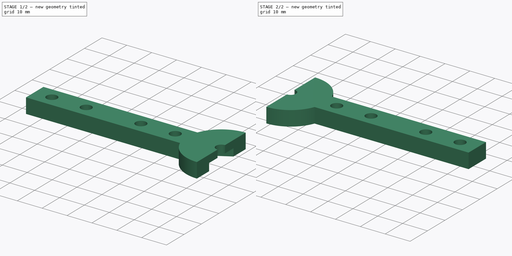
[diagram: build sequence overview — one tinted view per stage of 2, left to right]
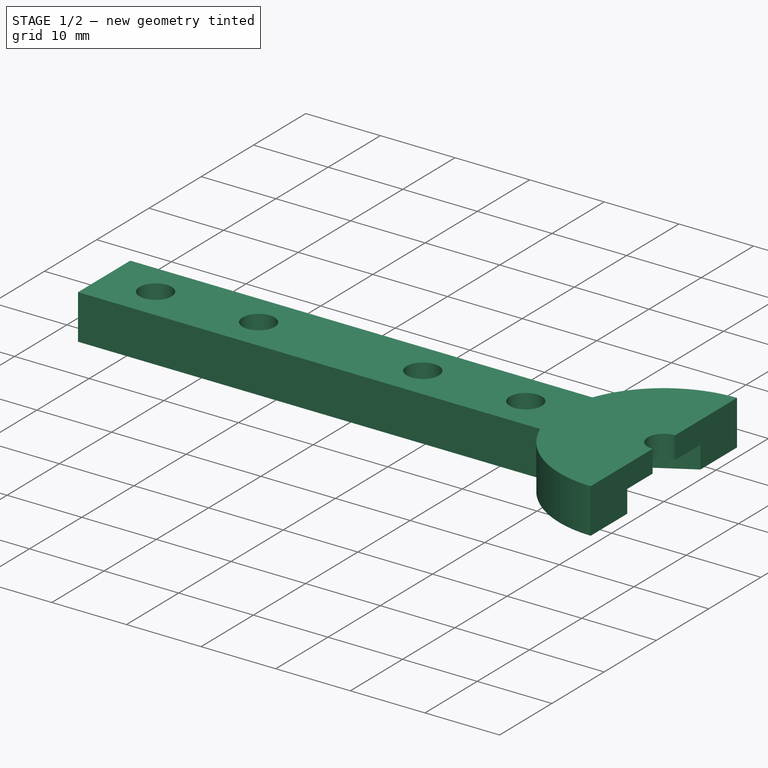
[diagram: stage 1 of 2 — iso view after this stage's code; geometry added in this stage tinted green]
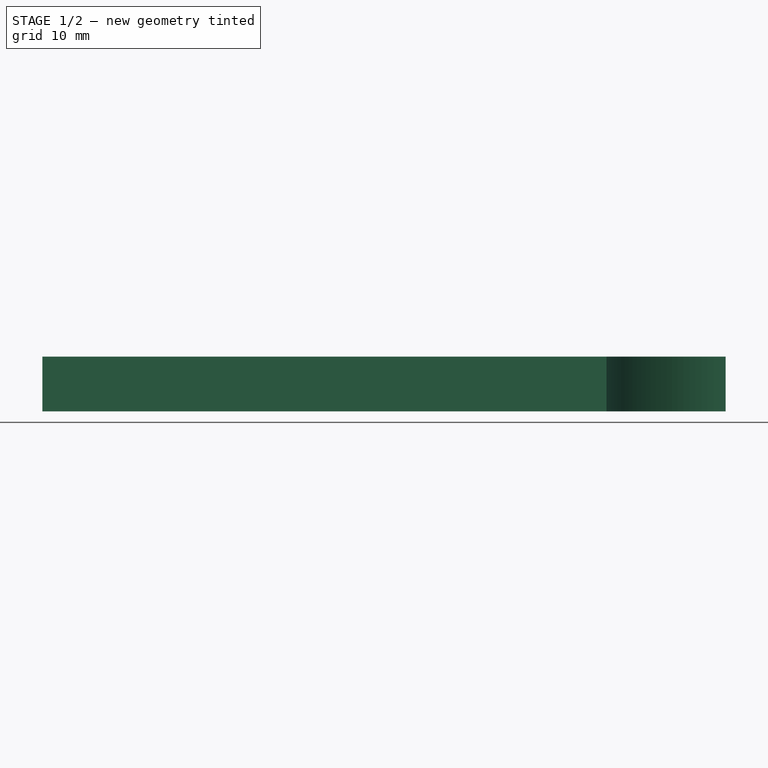
[diagram: stage 1 of 2 — front view after this stage's code; geometry added in this stage tinted green]
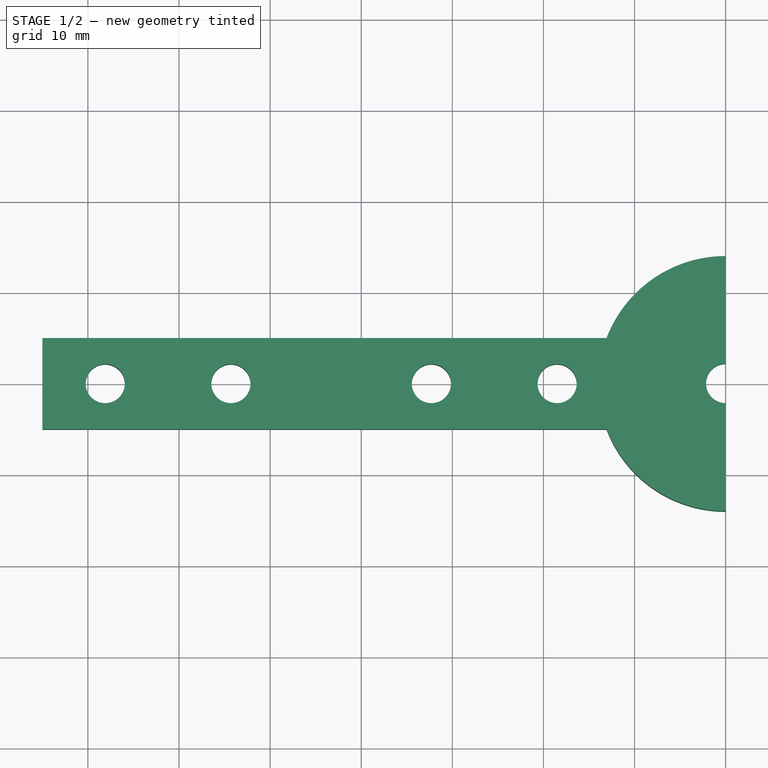
[diagram: stage 1 of 2 — top view after this stage's code; geometry added in this stage tinted green]
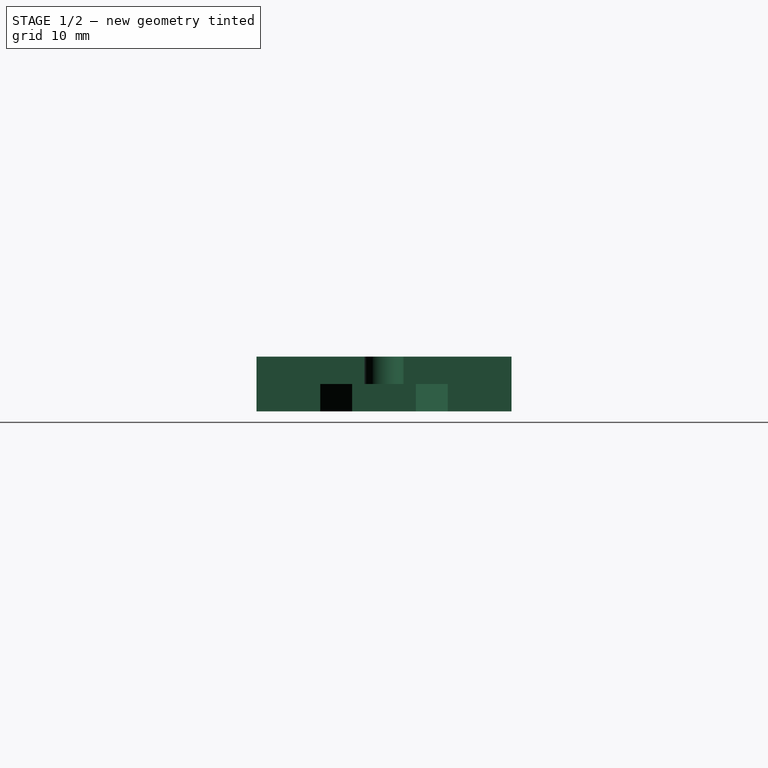
[diagram: stage 1 of 2 — right view after this stage's code; geometry added in this stage tinted green]
FCSTD DOCUMENT  (FreeCAD 0.18R16146 (Git))
Label: knifeblade
License: All rights reserved
LicenseURL: http://en.wikipedia.org/wiki/All_rights_reserved
objects: Sketcher::SketchObject×2, Spreadsheet::Sheet×1, PartDesign::Pad×1, PartDesign::Pocket×1, PartDesign::Body×1, Part::Mirroring×1
note: 8 computed .brp shape members not serialized (recipe doc carries the construction recipe); baked Part::Feature solids carry a one-line shape summary decoded from their .brp

FEATURE [Spreadsheet::Sheet] Spreadsheet  label="config"
  cells = A1=NAME; B1=VALUE; A2=knife_length; B2==36mm; A3=knife_width; B3(knife_width)==18mm; F3==config.knife_height; A4=knife_height; B4(knife_height)==1mm; A5=knife_screwhole_radius; B5(knife_screwhole_radius)==3.5mm; A6=knife_screwhole_sep; B6(knife_screwhole_sep)==6.8mm + config.knife_screwhole_radius * 2; A7=knife_seperation; B7(knife_seperation)==15mm + config.knife_screwhole_radius * 2; A8=cutter_radius; B8(cutter_radius)==75mm; A9=cutter_width; B9==10mm; A10=cutter_height; B10(cutter_height)==6mm; A11=cutter_hex_radius; B11(cutter_hex_radius)==6.85mm + 0.15mm; A12=cutter_hex_height; B12(cutter_hex_height)==5.1mm; A13=screw_diameter; B13(screw_diameter)==4.3mm
FEATURE [Sketcher::SketchObject] Sketch
  MapMode = 5
  Support = -> [XY_Plane]
  expr: Constraints[34] = config.knife_seperation
  expr: Constraints[7] = config.cutter_radius * 2
  expr: Constraints[32] = config.knife_screwhole_sep
  expr: Constraints[33] = config.knife_screwhole_sep
  expr: Constraints[28] = config.screw_diameter / 2
  expr: Constraints[38] = config.screw_diameter / 2
  expr: Constraints[9] = config.cutter_hex_radius * 2
  expr: Constraints[8] = config.cutter_width
  sketch-geometry (17):
    g0: Circle [constr] CenterX=0 CenterY=0 CenterZ=0 NormalX=0 NormalY=0 NormalZ=1 AngleXU=0 Radius=14
    g1: LineSegment [constr] StartX=-75 StartY=5 StartZ=0 EndX=75 EndY=5 EndZ=0
    g2: LineSegment [constr] StartX=75 StartY=5 StartZ=0 EndX=75 EndY=-5 EndZ=0
    g3: LineSegment [constr] StartX=75 StartY=-5 StartZ=0 EndX=-75 EndY=-5 EndZ=0
    g4: LineSegment [constr] StartX=-75 StartY=-5 StartZ=0 EndX=-75 EndY=5 EndZ=0
    g5: LineSegment StartX=-13.0767 StartY=5 StartZ=0 EndX=-75 EndY=5 EndZ=0
    g6: LineSegment StartX=-75 StartY=5 StartZ=0 EndX=-75 EndY=-5 EndZ=0
    g7: LineSegment StartX=-75 StartY=-5 StartZ=0 EndX=-13.0767 EndY=-5 EndZ=0
    g8: Circle CenterX=-68.1 CenterY=0 CenterZ=0 NormalX=0 NormalY=0 NormalZ=1 AngleXU=0 Radius=2.15
    g9: ArcOfCircle CenterX=0 CenterY=0 CenterZ=0 NormalX=0 NormalY=0 NormalZ=1 AngleXU=0 Radius=14 StartAngle=1.5708 EndAngle=2.77639
    g10: ArcOfCircle CenterX=0 CenterY=0 CenterZ=0 NormalX=0 NormalY=0 NormalZ=1 AngleXU=0 Radius=14 StartAngle=3.5068 EndAngle=4.71239
    g11: Circle CenterX=-54.3 CenterY=0 CenterZ=0 NormalX=0 NormalY=0 NormalZ=1 AngleXU=0 Radius=2.15
    g12: Circle CenterX=-32.3 CenterY=0 CenterZ=0 NormalX=0 NormalY=0 NormalZ=1 AngleXU=0 Radius=2.15
    g13: Circle CenterX=-18.5 CenterY=0 CenterZ=0 NormalX=0 NormalY=0 NormalZ=1 AngleXU=0 Radius=2.15
    g14: ArcOfCircle CenterX=0 CenterY=0 CenterZ=0 NormalX=0 NormalY=0 NormalZ=1 AngleXU=0 Radius=2.15 StartAngle=1.5708 EndAngle=4.71239
    g15: LineSegment StartX=0 StartY=14 StartZ=0 EndX=0 EndY=2.15 EndZ=0
    g16: LineSegment StartX=-2.6e-15 StartY=-2.15 StartZ=0 EndX=-2.6e-15 EndY=-14 EndZ=0
  constraints (46):
    c: Coincident(g0,g-1)
    c: Coincident(g1,g2)
    c: Coincident(g2,g3)
    c: Coincident(g3,g4)
    c: Coincident(g4,g1)
    c: Horizontal(g3)
    c: Vertical(g2)
    c: Distance(g1) = 150
    c: Distance(g4) = 10
    c: Radius(g0) = 14
    c: Symmetric(g1,g3,g-1)
    c: Symmetric(g1,g1,g-2)
    c: PointOnObject(g5,g0)
    c: Coincident(g5,g1)
    c: Horizontal(g5)
    c: Coincident(g5,g6)
    c: Coincident(g6,g3)
    c: Coincident(g6,g7)
    c: PointOnObject(g7,g0)
    c: Horizontal(g7)
    c: PointOnObject(g8,g-1)
    c: Coincident(g9,g-1)
    c: Coincident(g9,g5)
    c: Coincident(g10,g9)
    c: Coincident(g10,g7)
    c: Distance(g8,g6) = 6.9
    c: PointOnObject(g11,g-1)
    c: PointOnObject(g13,g-1)
    c: Radius(g12) = 2.15
    c: Equal(g12,g13)
    c: Equal(g12,g11)
    c: Equal(g12,g8)
    c: Distance(g11,g8) = 13.8
    c: Distance(g13,g12) = 13.8
    c: Distance(g12,g11) = 22
    c: PointOnObject(g12,g-1)
    c: PointOnObject(g9,g-2)
    c: Coincident(g14,g9)
    c: Radius(g14) = 2.15
    c: Coincident(g15,g9)
    c: Coincident(g15,g14)
    c: Vertical(g15)
    c: Coincident(g16,g10)
    c: Vertical(g16)
    c: Coincident(g16,g14)
    c: PointOnObject(g10,g-2)
FEATURE [Sketcher::SketchObject] Sketch001
  MapMode = 5
  Support = -> [XY_Plane]
  expr: Constraints[18] = config.cutter_hex_radius
  sketch-geometry (8):
    g0: LineSegment [constr] StartX=6.06218 StartY=3.5 StartZ=0 EndX=0 EndY=7 EndZ=0
    g1: LineSegment StartX=0 StartY=7 StartZ=0 EndX=-6.06218 EndY=3.5 EndZ=0
    g2: LineSegment StartX=-6.06218 StartY=3.5 StartZ=0 EndX=-6.06218 EndY=-3.5 EndZ=0
    g3: LineSegment StartX=-6.06218 StartY=-3.5 StartZ=0 EndX=-9e-16 EndY=-7 EndZ=0
    g4: LineSegment [constr] StartX=-9e-16 StartY=-7 StartZ=0 EndX=6.06218 EndY=-3.5 EndZ=0
    g5: LineSegment [constr] StartX=6.06218 StartY=-3.5 StartZ=0 EndX=6.06218 EndY=3.5 EndZ=0
    g6: Circle [constr] CenterX=0 CenterY=0 CenterZ=0 NormalX=0 NormalY=0 NormalZ=1 AngleXU=0 Radius=7
    g7: LineSegment StartX=0 StartY=7 StartZ=0 EndX=-9e-16 EndY=-7 EndZ=0
  constraints (18):
    c: Coincident(g0,g1)
    c: Coincident(g1,g2)
    c: Coincident(g2,g3)
    c: Coincident(g3,g4)
    c: Coincident(g4,g5)
    c: Coincident(g5,g0)
    c: Equal(g0, g1-g5) x5
    c: PointOnObject(g0,g6)
    c: PointOnObject(g1,g6)
    c: PointOnObject(g2,g6)
    c: PointOnObject(g3,g6)
    c: PointOnObject(g4,g6)
    c: PointOnObject(g5,g6)
    c: Coincident(g6,g-1)
    c: Radius(g6) = 7
    c: PointOnObject(g0,g-2)
    c: Coincident(g7,g1)
    c: Coincident(g7,g3)
FEATURE [PartDesign::Pad] Pad
  Length = 6
  Length2 = 100
  Profile = -> Sketch
  Type = 0
  expr: Length = config.cutter_height
FEATURE [PartDesign::Pocket] Pocket  label="pocket-hex-attach"
  BaseFeature = -> Pad
  Length = 3
  Length2 = 100
  Profile = -> Sketch001
  Reversed = true
  Type = 0
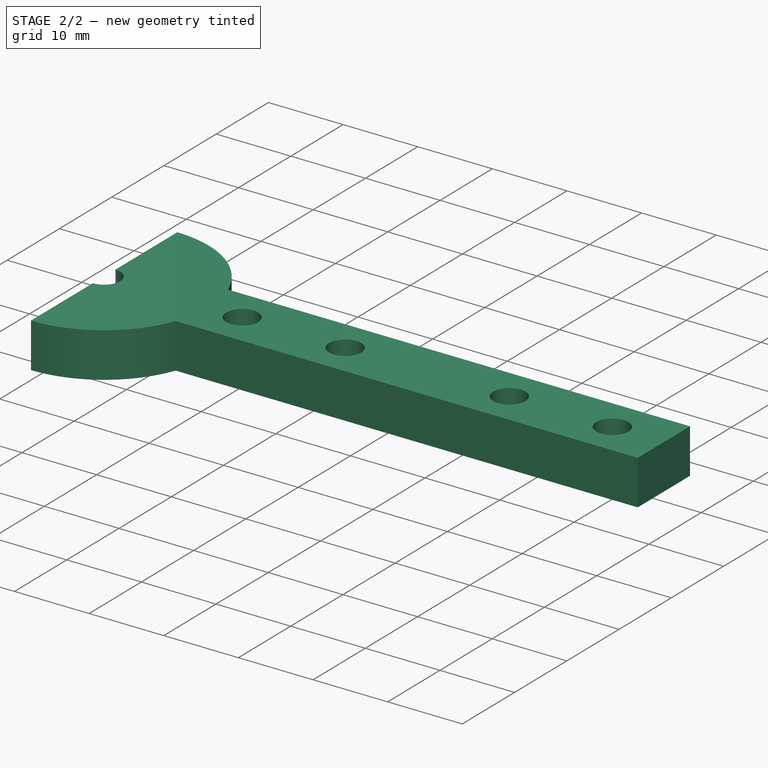
[diagram: stage 2 of 2 — iso view after this stage's code; geometry added in this stage tinted green]
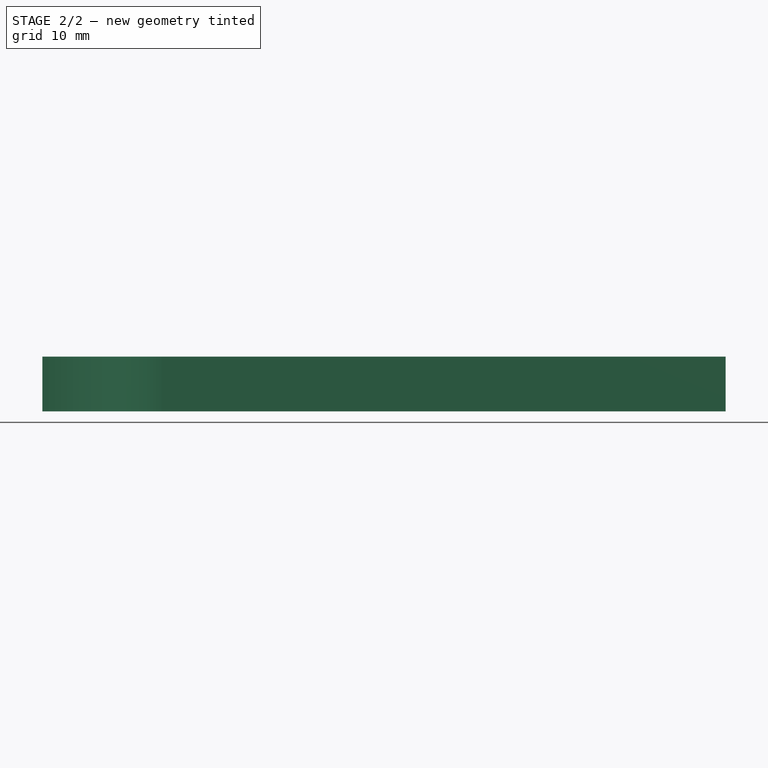
[diagram: stage 2 of 2 — front view after this stage's code; geometry added in this stage tinted green]
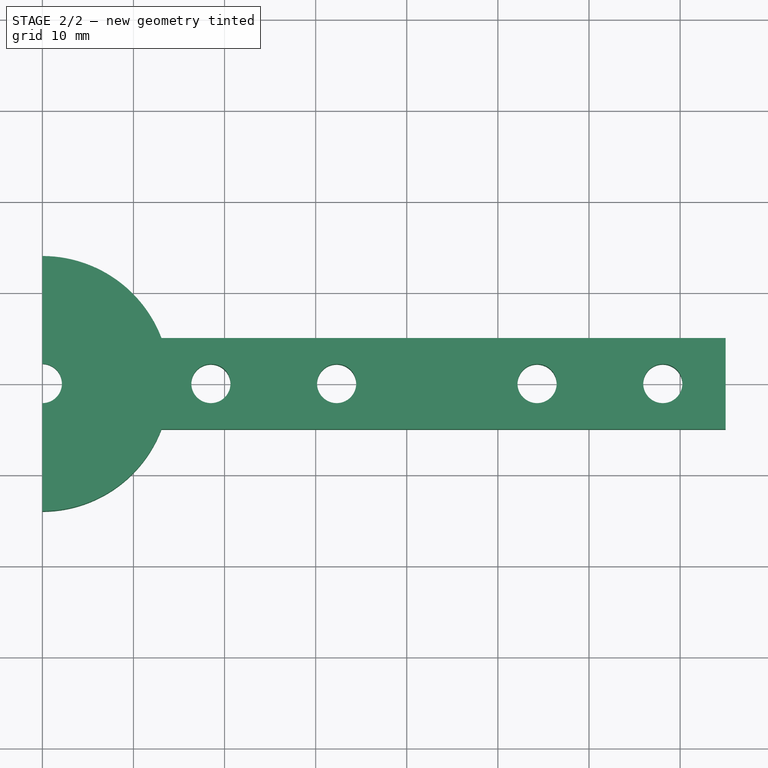
[diagram: stage 2 of 2 — top view after this stage's code; geometry added in this stage tinted green]
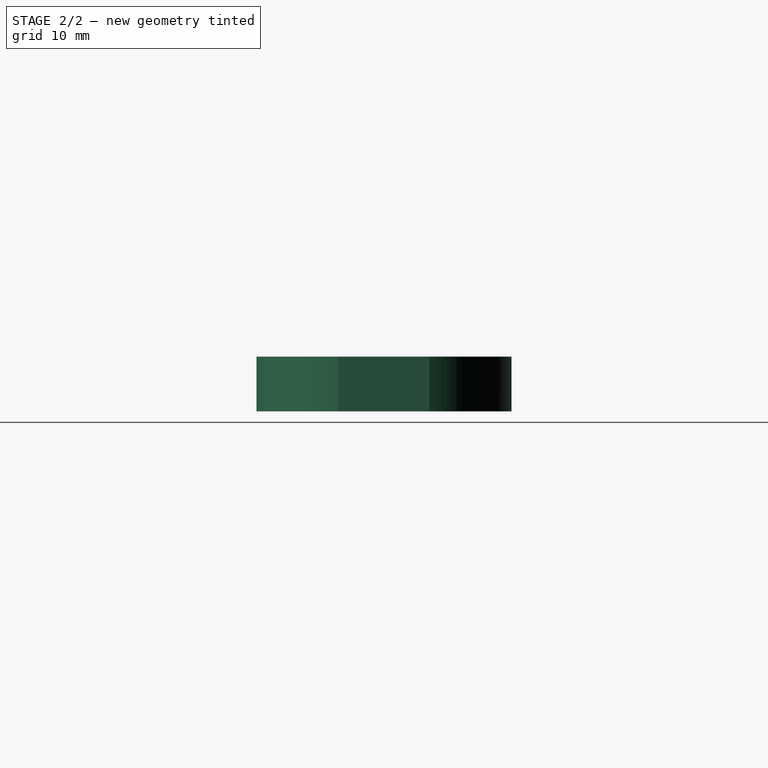
[diagram: stage 2 of 2 — right view after this stage's code; geometry added in this stage tinted green]
FEATURE [PartDesign::Body] Body
  Group = -> [Sketch,Sketch001,Pad,Pocket]
  Origin = -> Origin
  Tip = -> Pocket
FEATURE [Part::Mirroring] Part__Mirroring  label="Body (Mirror #1)"
  Base = (0,0,0)
  Normal = (1,0,0)
  Source = -> Body
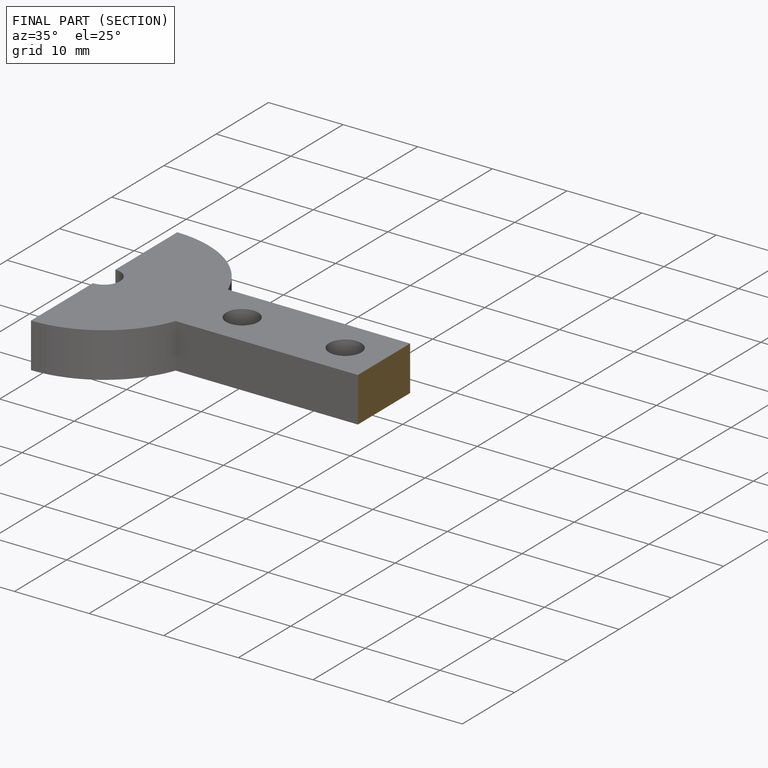
[diagram: finished part — half-section view (interior)]
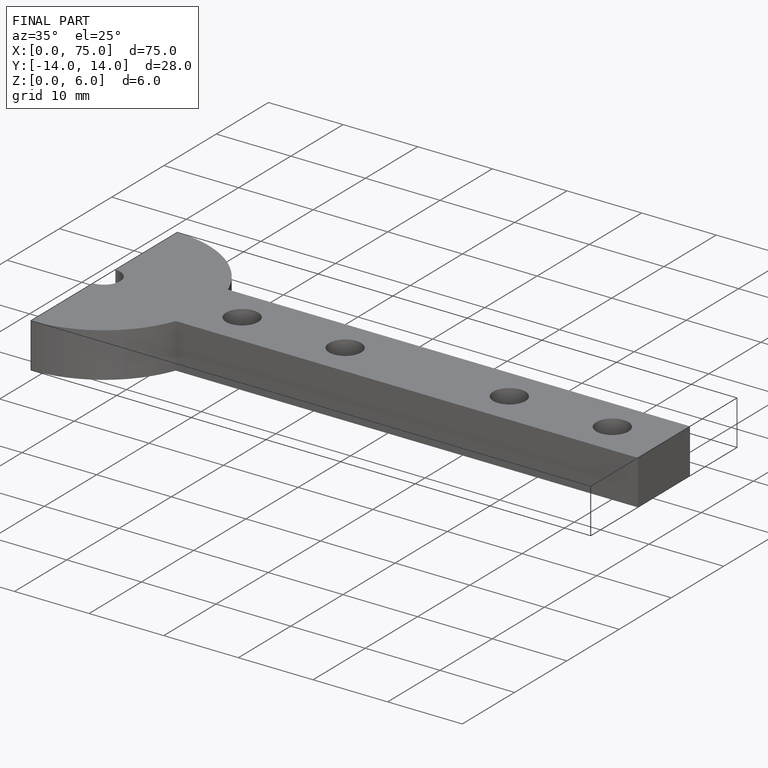
[diagram: finished part — iso view with bounding-box wireframe]
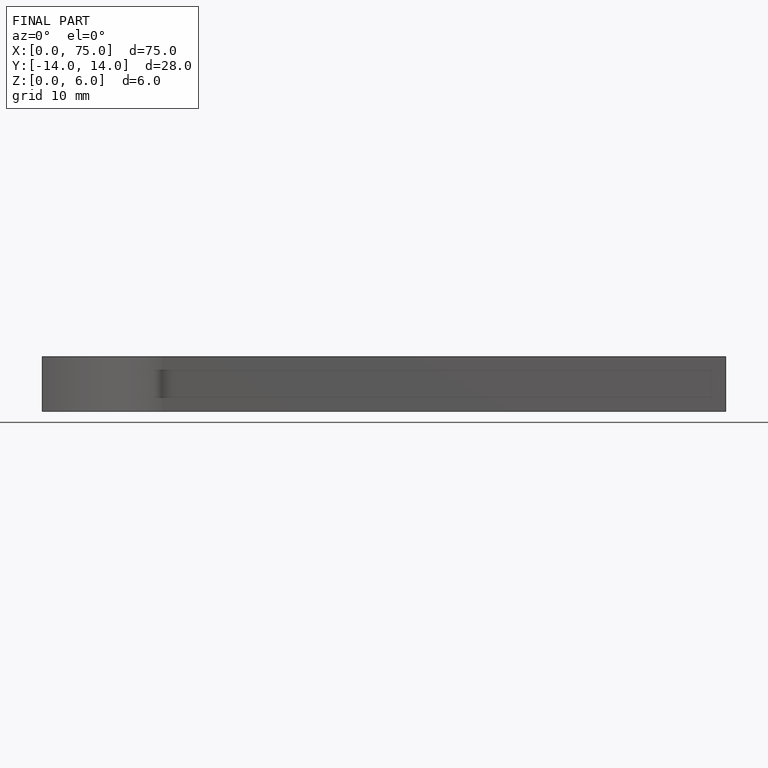
[diagram: finished part — front view with bounding-box wireframe]
